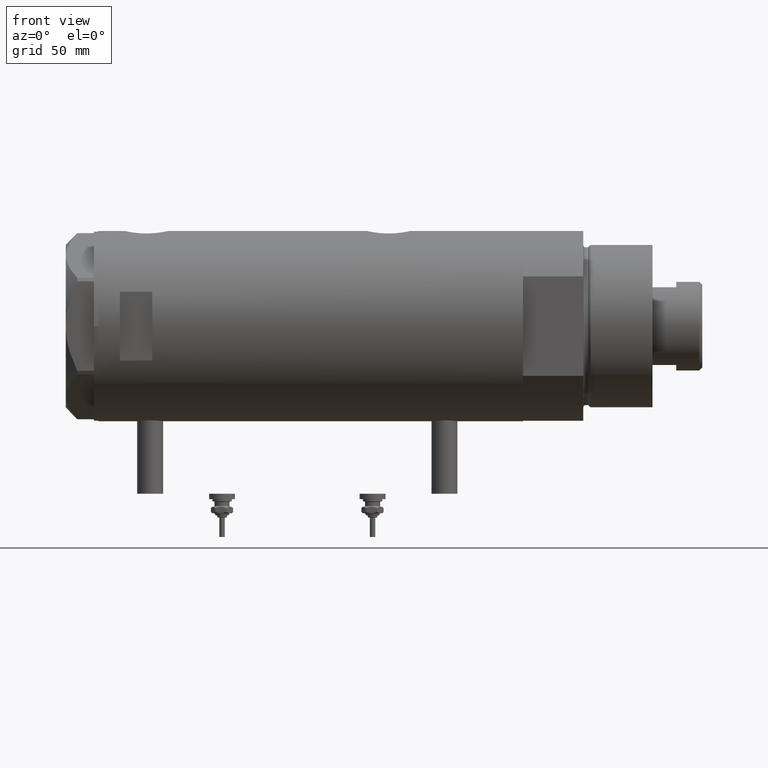
[diagram: clean part render]
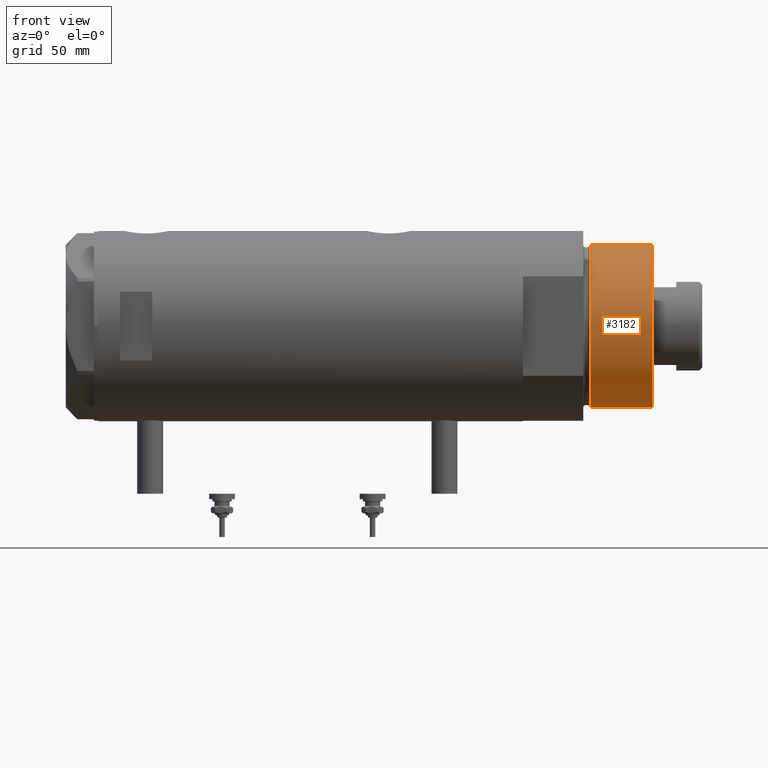
[diagram: same view with one face highlighted and labeled with its STEP entity id]
A machine part, front view. The second image highlights one B-rep face of the part: STEP entity #3182.
In plain terms, the highlighted cylindrical surface (partial cylindrical patch) has radius 37.5 mm, axis along (-1, -0, 0).
Its self-contained STEP definition (entity closure, byte-faithful):
#6 = VERTEX_POINT ( 'NONE', #1024 ) ;
#113 = VECTOR ( 'NONE', #528, 1000.000000000000000 ) ;
#528 = DIRECTION ( 'NONE',  ( -0.000000000000000000, -0.000000000000000000, -1.000000000000000000 ) ) ;
#730 = CARTESIAN_POINT ( 'NONE',  ( -37.50000000000000711, 0.000000000000000000, 31.27384048104054415 ) ) ;
#825 = EDGE_CURVE ( 'NONE', #4731, #6, #4961, .T. ) ;
#894 = EDGE_CURVE ( 'NONE', #6, #2976, #5398, .T. ) ;
#898 = AXIS2_PLACEMENT_3D ( 'NONE', #2701, #4075, #5911 ) ;
#953 = DIRECTION ( 'NONE',  ( 1.000000000000000000, 0.000000000000000000, 0.000000000000000000 ) ) ;
#1024 = CARTESIAN_POINT ( 'NONE',  ( 37.50000000000000711, 4.592425496802575156E-15, 59.89999999999999147 ) ) ;
#1201 = AXIS2_PLACEMENT_3D ( 'NONE', #1352, #2308, #953 ) ;
#1352 = CARTESIAN_POINT ( 'NONE',  ( 0.000000000000000000, 0.000000000000000000, 31.27384048104054415 ) ) ;
#1363 = VECTOR ( 'NONE', #2637, 1000.000000000000000 ) ;
#1450 = CARTESIAN_POINT ( 'NONE',  ( -37.50000000000000711, 0.000000000000000000, 59.89999999999999147 ) ) ;
#1523 = EDGE_CURVE ( 'NONE', #4731, #4809, #5203, .T. ) ;
#2116 = ORIENTED_EDGE ( 'NONE', *, *, #3285, .T. ) ;
#2308 = DIRECTION ( 'NONE',  ( -0.000000000000000000, -0.000000000000000000, 1.000000000000000000 ) ) ;
#2608 = ORIENTED_EDGE ( 'NONE', *, *, #894, .F. ) ;
#2637 = DIRECTION ( 'NONE',  ( -0.000000000000000000, -0.000000000000000000, -1.000000000000000000 ) ) ;
#2701 = CARTESIAN_POINT ( 'NONE',  ( 0.000000000000000000, 0.000000000000000000, 59.89999999999999147 ) ) ;
#2967 = CARTESIAN_POINT ( 'NONE',  ( 37.50000000000000711, 4.592425496802575156E-15, 31.27384048104054415 ) ) ;
#2976 = VERTEX_POINT ( 'NONE', #2967 ) ;
#2984 = CARTESIAN_POINT ( 'NONE',  ( 0.000000000000000000, 0.000000000000000000, 59.89999999999999147 ) ) ;
#3182 = ADVANCED_FACE ( 'NONE', ( #4642 ), #3741, .T. ) ;
#3285 = EDGE_CURVE ( 'NONE', #4809, #2976, #5658, .T. ) ;
#3329 = ORIENTED_EDGE ( 'NONE', *, *, #825, .F. ) ;
#3741 = CYLINDRICAL_SURFACE ( 'NONE', #898, 37.50000000000000711 ) ;
#3776 = DIRECTION ( 'NONE',  ( 0.000000000000000000, 0.000000000000000000, 1.000000000000000000 ) ) ;
#3841 = DIRECTION ( 'NONE',  ( 1.000000000000000000, 0.000000000000000000, 0.000000000000000000 ) ) ;
#3960 = CARTESIAN_POINT ( 'NONE',  ( 37.50000000000000711, 4.592425496802575156E-15, 59.89999999999999147 ) ) ;
#4075 = DIRECTION ( 'NONE',  ( -0.000000000000000000, -0.000000000000000000, -1.000000000000000000 ) ) ;
#4642 = FACE_OUTER_BOUND ( 'NONE', #4842, .T. ) ;
#4731 = VERTEX_POINT ( 'NONE', #1450 ) ;
#4781 = CARTESIAN_POINT ( 'NONE',  ( -37.50000000000000711, 0.000000000000000000, 59.89999999999999147 ) ) ;
#4809 = VERTEX_POINT ( 'NONE', #730 ) ;
#4842 = EDGE_LOOP ( 'NONE', ( #2608, #3329, #5328, #2116 ) ) ;
#4961 = CIRCLE ( 'NONE', #5732, 37.50000000000000711 ) ;
#5203 = LINE ( 'NONE', #4781, #113 ) ;
#5328 = ORIENTED_EDGE ( 'NONE', *, *, #1523, .T. ) ;
#5398 = LINE ( 'NONE', #3960, #1363 ) ;
#5658 = CIRCLE ( 'NONE', #1201, 37.50000000000000711 ) ;
#5732 = AXIS2_PLACEMENT_3D ( 'NONE', #2984, #3776, #3841 ) ;
#5911 = DIRECTION ( 'NONE',  ( -1.000000000000000000, 0.000000000000000000, 0.000000000000000000 ) ) ;